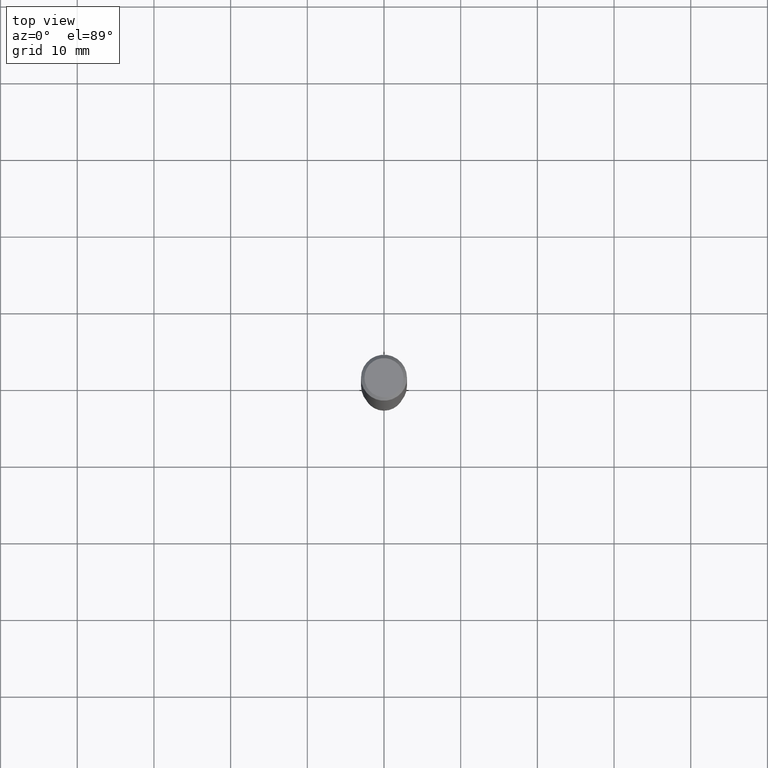
[diagram: clean part render]
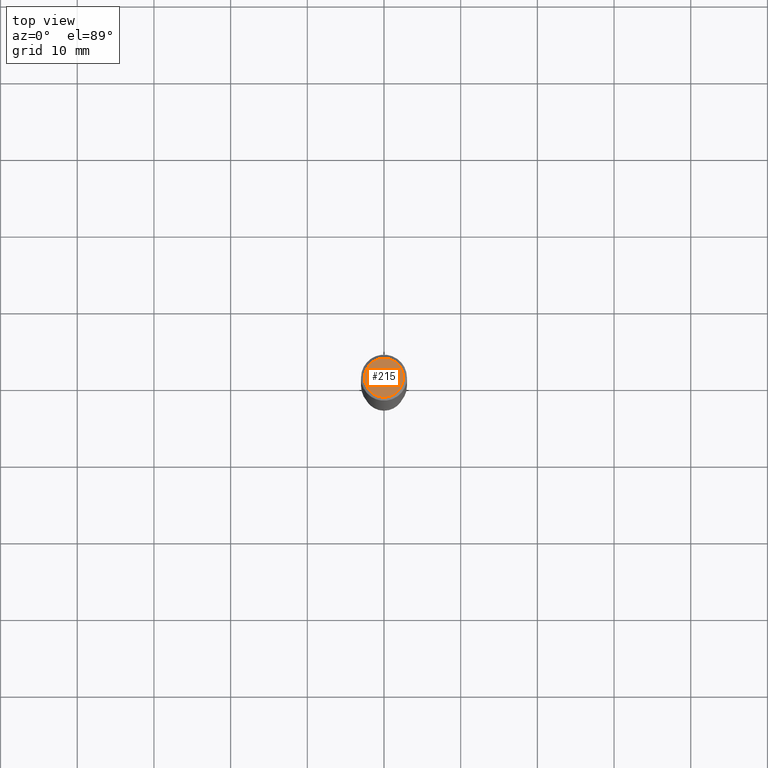
[diagram: same view with one face highlighted and labeled with its STEP entity id]
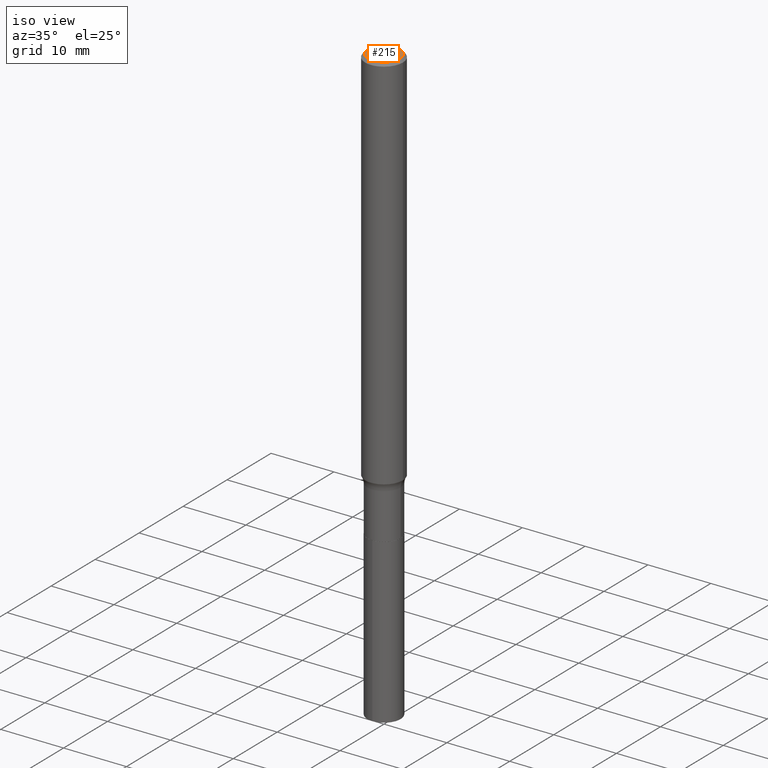
[diagram: same view with one face highlighted and labeled with its STEP entity id]
A machine part, top view. The second image highlights one B-rep face of the part: STEP entity #215.
A second angle (iso view) of the same face is appended — the face is thin or edge-on in the first view.
In plain terms, the highlighted planar face has unit normal (0, -0, -1).
Its self-contained STEP definition (entity closure, byte-faithful):
#51 = ORIENTED_EDGE ( 'NONE', *, *, #407, .T. ) ;
#77 = DIRECTION ( 'NONE',  ( 2.438088387897960049E-29, -3.491481338843145188E-15, -1.000000000000000000 ) ) ;
#80 = DIRECTION ( 'NONE',  ( 1.000000000000000000, -6.982962677686266711E-15, 4.875668750515085695E-29 ) ) ;
#101 = EDGE_LOOP ( 'NONE', ( #51, #335 ) ) ;
#124 = CARTESIAN_POINT ( 'NONE',  ( 7.015701749847187307E-46, -1.001656274515824970E-31, -2.868857591682589212E-17 ) ) ;
#148 = AXIS2_PLACEMENT_3D ( 'NONE', #260, #235, #80 ) ;
#151 = CARTESIAN_POINT ( 'NONE',  ( 0.1003850000000000159, -7.803837484803599345E-16, -2.868857591682071522E-17 ) ) ;
#156 = VERTEX_POINT ( 'NONE', #151 ) ;
#157 = DIRECTION ( 'NONE',  ( -1.000000000000000000, 6.982962677686265922E-15, -4.876176775795935793E-29 ) ) ;
#203 = CIRCLE ( 'NONE', #421, 0.1003850000000000159 ) ;
#206 = EDGE_CURVE ( 'NONE', #156, #390, #289, .T. ) ;
#215 = ADVANCED_FACE ( 'NONE', ( #265 ), #406, .F. ) ;
#228 = CARTESIAN_POINT ( 'NONE',  ( 3.507850874923593654E-46, -5.008281372579124849E-32, -1.434428795841294606E-17 ) ) ;
#235 = DIRECTION ( 'NONE',  ( -2.445468806185136597E-29, 3.491481338843145583E-15, 1.000000000000000000 ) ) ;
#260 = CARTESIAN_POINT ( 'NONE',  ( 7.015701749847187307E-46, -1.001656274515824970E-31, -2.868857591682589212E-17 ) ) ;
#265 = FACE_OUTER_BOUND ( 'NONE', #101, .T. ) ;
#289 = CIRCLE ( 'NONE', #148, 0.1003850000000000159 ) ;
#311 = CARTESIAN_POINT ( 'NONE',  ( -0.1003850000000000159, 7.319105043583386689E-16, -2.868857591683090262E-17 ) ) ;
#335 = ORIENTED_EDGE ( 'NONE', *, *, #206, .T. ) ;
#384 = DIRECTION ( 'NONE',  ( -2.445468806185136597E-29, 3.491481338843145583E-15, 1.000000000000000000 ) ) ;
#390 = VERTEX_POINT ( 'NONE', #311 ) ;
#406 = PLANE ( 'NONE',  #409 ) ;
#407 = EDGE_CURVE ( 'NONE', #390, #156, #203, .T. ) ;
#409 = AXIS2_PLACEMENT_3D ( 'NONE', #228, #77, #157 ) ;
#415 = DIRECTION ( 'NONE',  ( 1.000000000000000000, -6.982962677686266711E-15, 4.875668750515085695E-29 ) ) ;
#421 = AXIS2_PLACEMENT_3D ( 'NONE', #124, #384, #415 ) ;